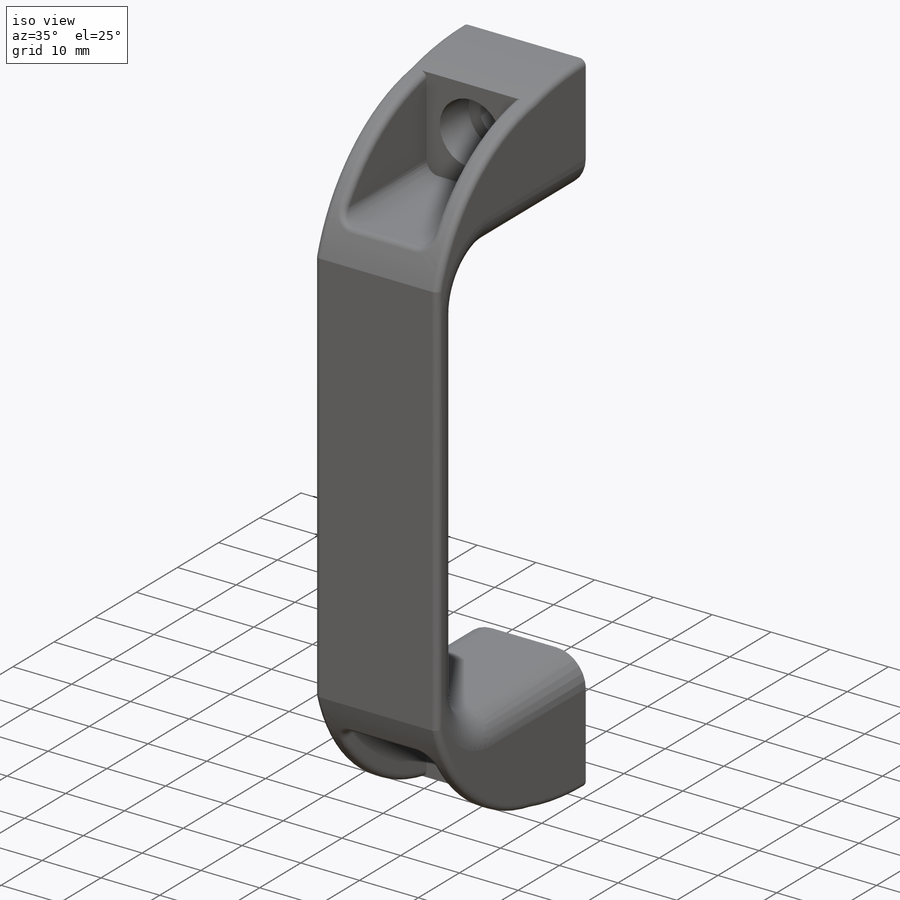
[diagram: iso view]
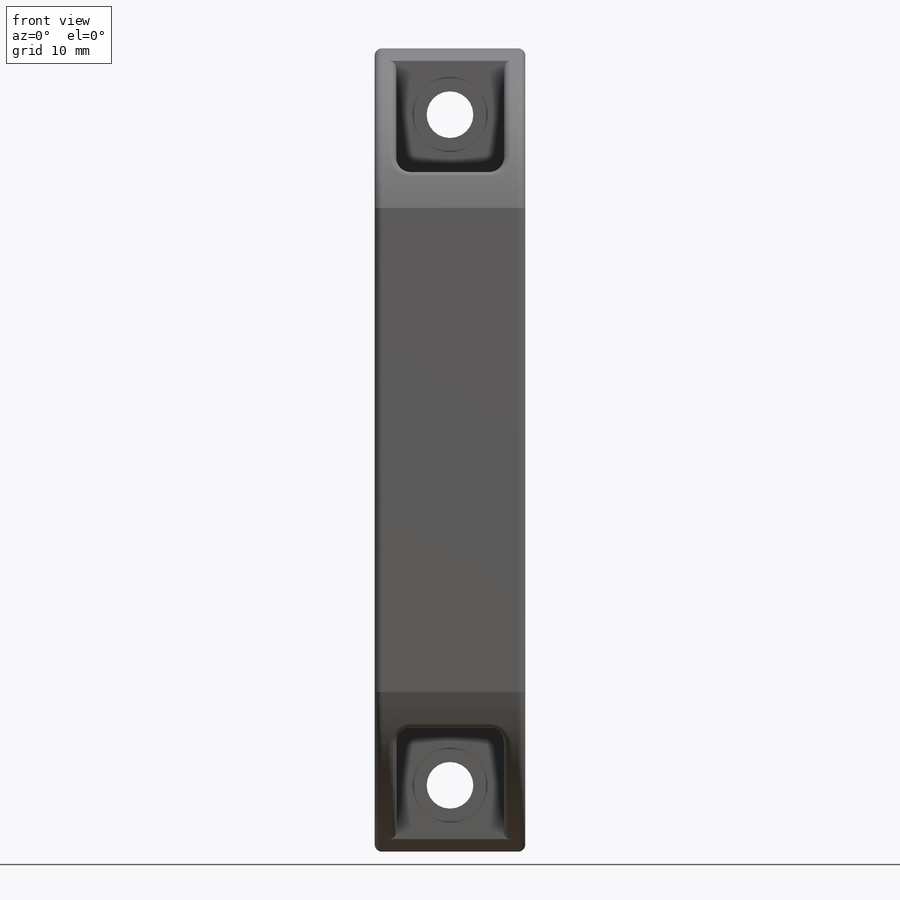
[diagram: front view]
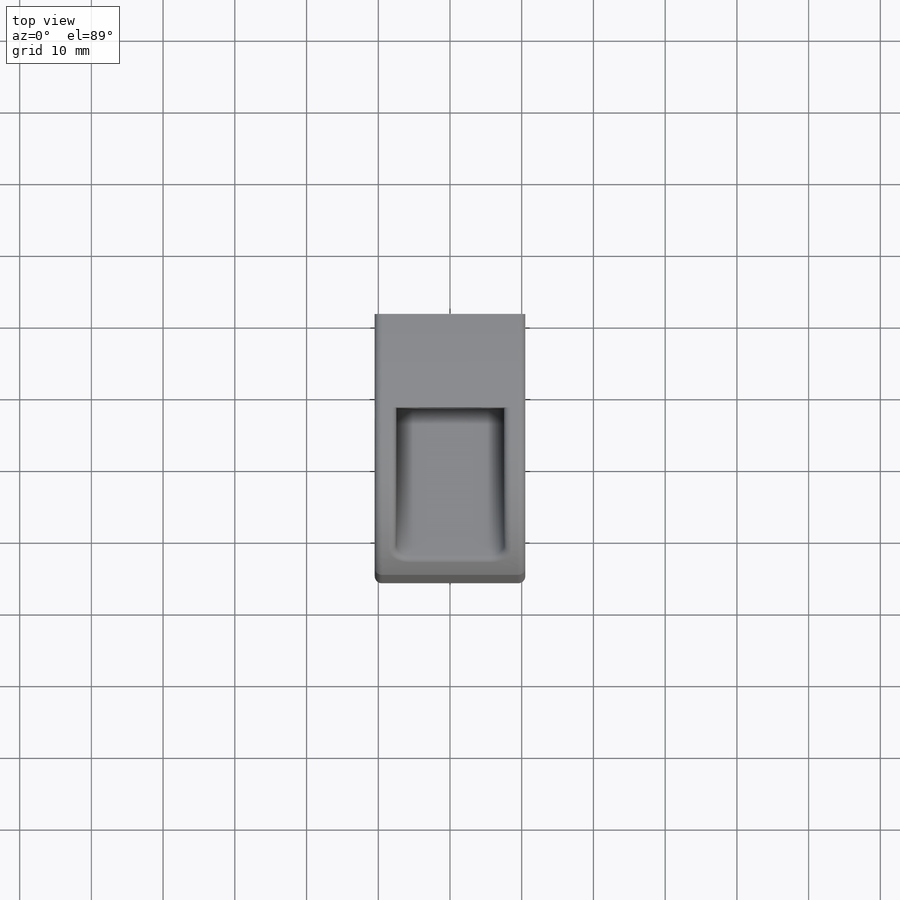
[diagram: top view]
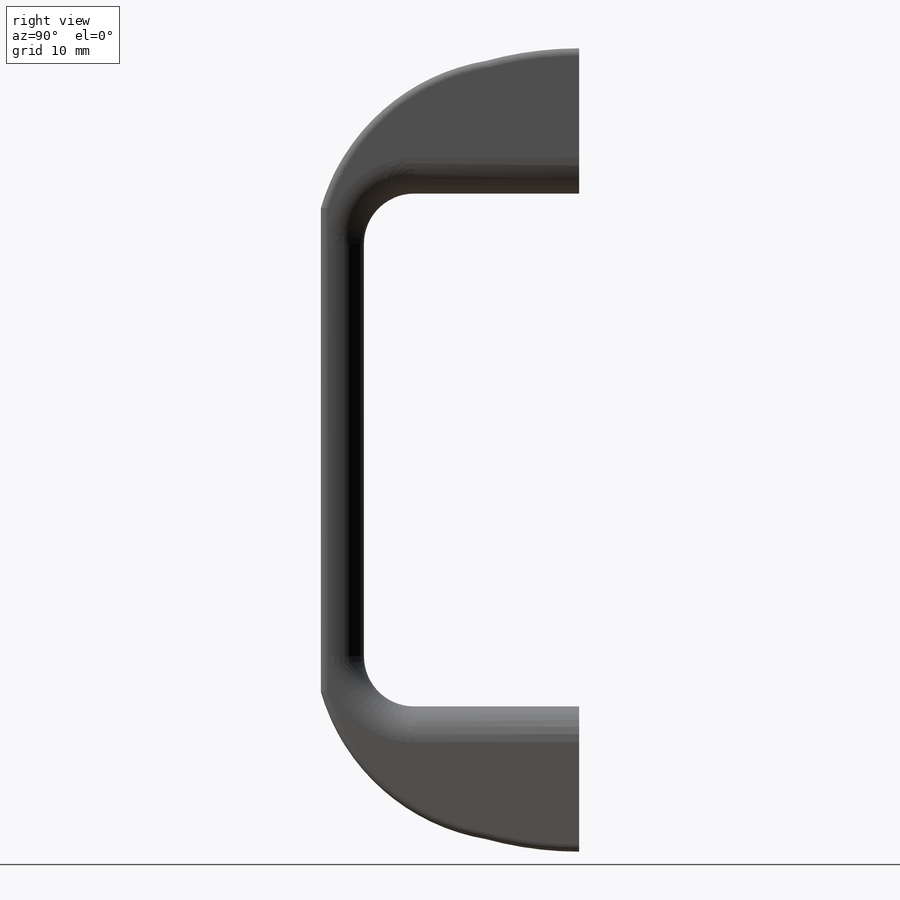
[diagram: right view]
SOLIDWORKS PART (.sldprt)
format: sldprt  version: not decoded by parser v0  size: 416,256 bytes
history: native  units: mm
features: sketch x4, cut_extrude x3, fillet x3, material x1, extrude x1 (+15 scaffold rows collapsed)
feature tree (27):
  scaffold x15  (default folders/planes/origin — collapsed)
  material  "Material <not specified>"
  sketch  "Sketch1"  dims[c1.D10=3.175mm c1.D13=2.3876mm c1.D5=2.54mm c1.D4=7.0mm c1.D9=29.0mm c1.D1=4.7752mm c1.D2=14.3002mm c1.D3=25.4mm c2.D4=23.8252mm c2.D5=49.2252mm c2.D6=9.525mm c2.D7=6.35mm c2.D8=9.525mm c2.D9=22.225mm c2.D10=4.7752mm c2.D11=25.4mm c2.D12=12.7mm c2.D1=112.0mm c2.D2=18.288mm c2.D3=4.7498mm c3.D4=31.0896mm c3.D6=1.4224mm c3.D7=1.143mm c3.D2=36.0mm c3.D3=71.5mm c3.D5=30.0mm c4.D6=13.0mm c4.D7=1.75mm c4.D8=20.5mm]
  extrude  "Boss-Extrude1"  Depth=21mm
  sketch  "Sketch2"  dims[D3=2.0mm D1=15.0mm D2=17.25mm]
  cut_extrude  "Cut-Extrude1"  [1 undecoded]
  sketch  "Sketch3"  dims[D1=6.5mm D2=10.5mm D3=93.5mm]
  cut_extrude  "Cut-Extrude2"  [1 undecoded]
  sketch  "Sketch4"
  cut_extrude  "Cut-Extrude3"  Depth=6mm
  fillet  "Fillet1"  Radius=5mm
  fillet  "Fillet2"  Radius=1mm
  fillet  "Fillet3"  Radius=1mm
decode coverage: 8 of 11 modeling features carry decoded parameters
note: 2 parameter values undecoded
note: suppression state not decoded; provenance and decode notes live in map.json
